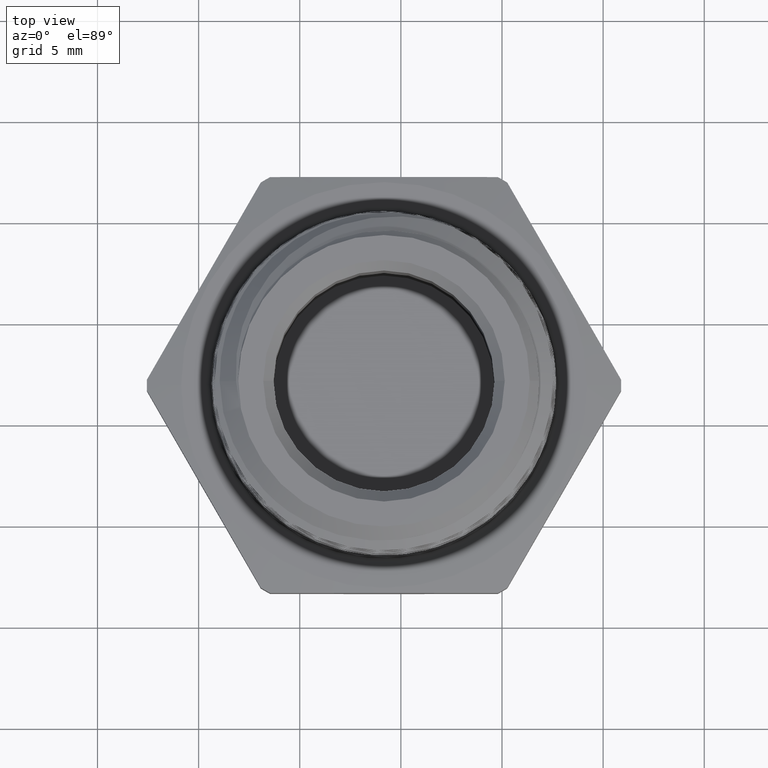
[diagram: clean part render]
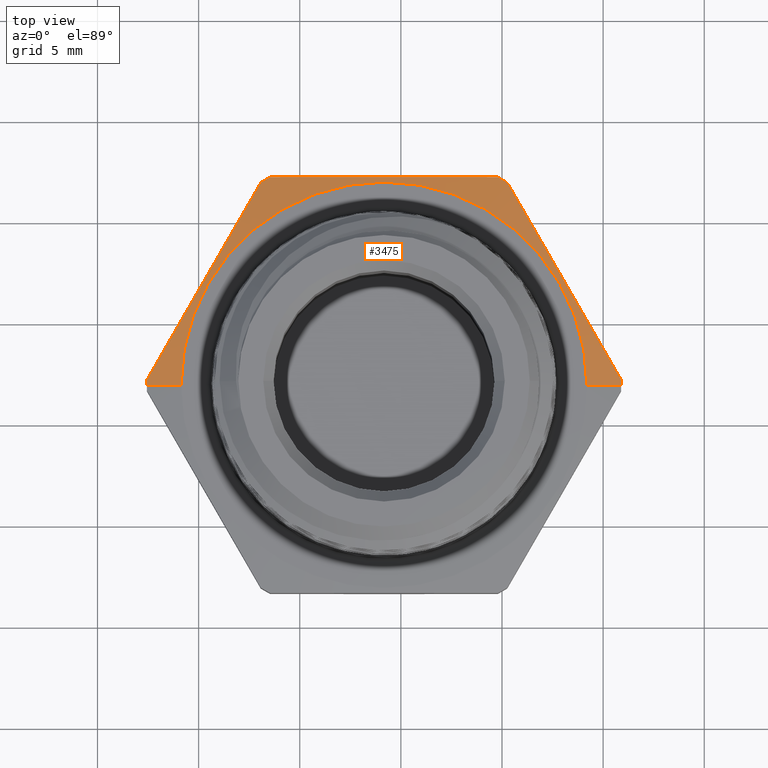
[diagram: same view with one face highlighted and labeled with its STEP entity id]
A machine part, top view. The second image highlights one B-rep face of the part: STEP entity #3475.
In plain terms, the highlighted conical surface has half-angle 78 deg.
Its self-contained STEP definition (entity closure, byte-faithful):
#615 = DIRECTION ( 'NONE',  ( 0.9781476007338069100, 1.197885328332319900E-016, -0.2079116908177526000 ) ) ;
#619 = CARTESIAN_POINT ( 'NONE',  ( 0.3950000000000000200, 4.837354856632045600E-017, 0.1199999999999999000 ) ) ;
#620 = CARTESIAN_POINT ( 'NONE',  ( 1.469576158976820900E-017, 0.0000000000000000000, 0.1199999999999999500 ) ) ;
#621 = DIRECTION ( 'NONE',  ( -1.224646799147351200E-016, -0.0000000000000000000, -1.000000000000000000 ) ) ;
#622 = DIRECTION ( 'NONE',  ( -1.000000000000000000, 0.0000000000000000000, 1.296763288131770500E-016 ) ) ;
#623 = CARTESIAN_POINT ( 'NONE',  ( 0.2768791911317296000, 0.3304311734012696000, 0.1133677952827658300 ) ) ;
#624 = CARTESIAN_POINT ( 'NONE',  ( 0.3507402885326974500, 0.2025000000000002400, 0.1223810734838337300 ) ) ;
#625 = CARTESIAN_POINT ( 'NONE',  ( 1.296072056520598000E-017, 0.0000000000000000000, 0.1058323148701303800 ) ) ;
#626 = DIRECTION ( 'NONE',  ( -1.224646799147351200E-016, -0.0000000000000000000, -1.000000000000000000 ) ) ;
#627 = DIRECTION ( 'NONE',  ( -1.000000000000000000, 0.0000000000000000000, 1.109536171359670700E-016 ) ) ;
#628 = CARTESIAN_POINT ( 'NONE',  ( 0.2399486424312457200, 0.3943967601019042800, 0.1058323148701303400 ) ) ;
#629 = CARTESIAN_POINT ( 'NONE',  ( 0.4246013859336653100, 0.07456882659873079200, 0.1133677952827658700 ) ) ;
#630 = CARTESIAN_POINT ( 'NONE',  ( 0.4615319346341488200, 0.01060323989809597000, 0.1058323148701303300 ) ) ;
#631 = CARTESIAN_POINT ( 'NONE',  ( -0.1476261385661211100, 0.4050000000000000300, 0.1126481207821148400 ) ) ;
#632 = CARTESIAN_POINT ( 'NONE',  ( -0.1846688683639230200, 0.4049999999999999200, 0.1095984099806900600 ) ) ;
#633 = CARTESIAN_POINT ( 'NONE',  ( 1.296072056520598000E-017, 0.0000000000000000000, 0.1058323148701303800 ) ) ;
#634 = DIRECTION ( 'NONE',  ( -1.224646799147351200E-016, -0.0000000000000000000, -1.000000000000000000 ) ) ;
#635 = DIRECTION ( 'NONE',  ( -1.000000000000000000, 0.0000000000000000000, 1.109536171359670700E-016 ) ) ;
#636 = CARTESIAN_POINT ( 'NONE',  ( -0.2215832922029026500, 0.4049999999999998600, 0.1058323148701304100 ) ) ;
#637 = CARTESIAN_POINT ( 'NONE',  ( -0.07366055179631755800, 0.4049999999999999700, 0.1167913988028559300 ) ) ;
#638 = CARTESIAN_POINT ( 'NONE',  ( -0.03669986454074527400, 0.4050000000000000300, 0.1178790002141680800 ) ) ;
#639 = CARTESIAN_POINT ( 'NONE',  ( 0.07410859054405141700, 0.4050000000000000300, 0.1178652587683187600 ) ) ;
#640 = CARTESIAN_POINT ( 'NONE',  ( 0.1478797044767210500, 0.4049999999999999700, 0.1133517257805391600 ) ) ;
#641 = CARTESIAN_POINT ( 'NONE',  ( 0.2215832922029025400, 0.4049999999999999200, 0.1058323148701303400 ) ) ;
#642 = CARTESIAN_POINT ( 'NONE',  ( -0.3507402885326975600, 0.2025000000000000100, 0.1223810734838337700 ) ) ;
#643 = CARTESIAN_POINT ( 'NONE',  ( -0.4246013859336651400, 0.07456882659873072200, 0.1133677952827659000 ) ) ;
#645 = CARTESIAN_POINT ( 'NONE',  ( 1.296072056520598000E-017, 0.0000000000000000000, 0.1058323148701303800 ) ) ;
#646 = DIRECTION ( 'NONE',  ( -1.224646799147351200E-016, -0.0000000000000000000, -1.000000000000000000 ) ) ;
#647 = DIRECTION ( 'NONE',  ( -1.000000000000000000, 0.0000000000000000000, 1.109536171359670700E-016 ) ) ;
#648 = CARTESIAN_POINT ( 'NONE',  ( -0.4615319346341488200, 0.01060323989809593500, 0.1058323148701304400 ) ) ;
#649 = CARTESIAN_POINT ( 'NONE',  ( -0.2768791911317301500, 0.3304311734012695400, 0.1133677952827659200 ) ) ;
#650 = CARTESIAN_POINT ( 'NONE',  ( -0.2399486424312462500, 0.3943967601019039400, 0.1058323148701304100 ) ) ;
#1320 = CARTESIAN_POINT ( 'NONE',  ( -0.3950000000000000200, 0.0000000000000000000, 0.1200000000000000000 ) ) ;
#1321 = CARTESIAN_POINT ( 'NONE',  ( 1.296072056520598000E-017, 0.0000000000000000000, 0.1058323148701303800 ) ) ;
#1322 = DIRECTION ( 'NONE',  ( -1.224646799147351200E-016, -0.0000000000000000000, -1.000000000000000000 ) ) ;
#1323 = DIRECTION ( 'NONE',  ( -1.000000000000000000, 0.0000000000000000000, 1.109536171359670700E-016 ) ) ;
#1325 = DIRECTION ( 'NONE',  ( -0.9781476007338071300, 0.0000000000000000000, -0.2079116908177524000 ) ) ;
#2846 = CARTESIAN_POINT ( 'NONE',  ( 0.4615319346341488200, 0.01060323989809597000, 0.1058323148701303300 ) ) ;
#2887 = CARTESIAN_POINT ( 'NONE',  ( 0.4616537180435968400, 5.653627481165655800E-017, 0.1058323148701303300 ) ) ;
#2888 = CARTESIAN_POINT ( 'NONE',  ( -0.2215832922029026500, 0.4049999999999998600, 0.1058323148701304100 ) ) ;
#2891 = CARTESIAN_POINT ( 'NONE',  ( 0.2399486424312457200, 0.3943967601019042800, 0.1058323148701303400 ) ) ;
#2892 = CARTESIAN_POINT ( 'NONE',  ( 0.2215832922029025400, 0.4049999999999999200, 0.1058323148701303400 ) ) ;
#2920 = CARTESIAN_POINT ( 'NONE',  ( -0.4616537180435968400, 0.0000000000000000000, 0.1058323148701304400 ) ) ;
#2922 = CARTESIAN_POINT ( 'NONE',  ( -0.2399486424312462500, 0.3943967601019039400, 0.1058323148701304100 ) ) ;
#2923 = CARTESIAN_POINT ( 'NONE',  ( -0.4615319346341488200, 0.01060323989809593500, 0.1058323148701304400 ) ) ;
#2925 = CARTESIAN_POINT ( 'NONE',  ( 0.3950000000000000200, 4.837354856632045600E-017, 0.1199999999999999000 ) ) ;
#2946 = CARTESIAN_POINT ( 'NONE',  ( -0.3950000000000000200, 0.0000000000000000000, 0.1200000000000000000 ) ) ;
#3475 = ADVANCED_FACE ( 'NONE', ( #4493 ), #4502, .T. ) ;
#3532 = AXIS2_PLACEMENT_3D ( 'NONE', #620, #621, #622 ) ;
#3533 = AXIS2_PLACEMENT_3D ( 'NONE', #625, #626, #627 ) ;
#3534 = AXIS2_PLACEMENT_3D ( 'NONE', #633, #634, #635 ) ;
#3535 = AXIS2_PLACEMENT_3D ( 'NONE', #645, #646, #647 ) ;
#3536 = AXIS2_PLACEMENT_3D ( 'NONE', #1321, #1322, #1323 ) ;
#3957 = EDGE_CURVE ( 'NONE', #4456, #4435, #4568, .T. ) ;
#3958 = EDGE_CURVE ( 'NONE', #4435, #4394, #4567, .T. ) ;
#3959 = EDGE_CURVE ( 'NONE', #4361, #4394, #4572, .T. ) ;
#3960 = EDGE_CURVE ( 'NONE', #4399, #4361, #5283, .T. ) ;
#3961 = EDGE_CURVE ( 'NONE', #4400, #4399, #4571, .T. ) ;
#3962 = EDGE_CURVE ( 'NONE', #4396, #4400, #5282, .T. ) ;
#3963 = EDGE_CURVE ( 'NONE', #4432, #4396, #4576, .T. ) ;
#3964 = EDGE_CURVE ( 'NONE', #4433, #4432, #5281, .T. ) ;
#3965 = EDGE_CURVE ( 'NONE', #4430, #4433, #4577, .T. ) ;
#3966 = EDGE_CURVE ( 'NONE', #4456, #4430, #4575, .T. ) ;
#4021 = AXIS2_PLACEMENT_3D ( 'NONE', #4130, #4131, #4129 ) ;
#4129 = DIRECTION ( 'NONE',  ( -1.000000000000000000, 0.0000000000000000000, 1.296763288131770500E-016 ) ) ;
#4130 = CARTESIAN_POINT ( 'NONE',  ( 1.469576158976820900E-017, 0.0000000000000000000, 0.1199999999999999500 ) ) ;
#4131 = DIRECTION ( 'NONE',  ( -1.224646799147351200E-016, -0.0000000000000000000, -1.000000000000000000 ) ) ;
#4361 = VERTEX_POINT ( 'NONE', #2846 ) ;
#4394 = VERTEX_POINT ( 'NONE', #2887 ) ;
#4396 = VERTEX_POINT ( 'NONE', #2888 ) ;
#4399 = VERTEX_POINT ( 'NONE', #2891 ) ;
#4400 = VERTEX_POINT ( 'NONE', #2892 ) ;
#4430 = VERTEX_POINT ( 'NONE', #2920 ) ;
#4432 = VERTEX_POINT ( 'NONE', #2922 ) ;
#4433 = VERTEX_POINT ( 'NONE', #2923 ) ;
#4435 = VERTEX_POINT ( 'NONE', #2925 ) ;
#4456 = VERTEX_POINT ( 'NONE', #2946 ) ;
#4493 = FACE_OUTER_BOUND ( 'NONE', #5217, .T. ) ;
#4502 = CONICAL_SURFACE ( 'NONE', #4021, 0.3950000000000000200, 1.361356816555584000 ) ;
#4567 = LINE ( 'NONE', #619, #4573 ) ;
#4568 = CIRCLE ( 'NONE', #3532, 0.3950000000000000200 ) ;
#4571 = CIRCLE ( 'NONE', #3534, 0.4616537180435968400 ) ;
#4572 = CIRCLE ( 'NONE', #3533, 0.4616537180435968400 ) ;
#4573 = VECTOR ( 'NONE', #615, 39.37007874015748900 ) ;
#4575 = LINE ( 'NONE', #1320, #4579 ) ;
#4576 = CIRCLE ( 'NONE', #3535, 0.4616537180435968400 ) ;
#4577 = CIRCLE ( 'NONE', #3536, 0.4616537180435968400 ) ;
#4579 = VECTOR ( 'NONE', #1325, 39.37007874015748100 ) ;
#5200 = ORIENTED_EDGE ( 'NONE', *, *, #3965, .F. ) ;
#5217 = EDGE_LOOP ( 'NONE', ( #5230, #5231, #5232, #5233, #5234, #5266, #5267, #5264, #5200, #5263 ) ) ;
#5230 = ORIENTED_EDGE ( 'NONE', *, *, #3957, .T. ) ;
#5231 = ORIENTED_EDGE ( 'NONE', *, *, #3958, .T. ) ;
#5232 = ORIENTED_EDGE ( 'NONE', *, *, #3959, .F. ) ;
#5233 = ORIENTED_EDGE ( 'NONE', *, *, #3960, .F. ) ;
#5234 = ORIENTED_EDGE ( 'NONE', *, *, #3961, .F. ) ;
#5263 = ORIENTED_EDGE ( 'NONE', *, *, #3966, .F. ) ;
#5264 = ORIENTED_EDGE ( 'NONE', *, *, #3964, .F. ) ;
#5266 = ORIENTED_EDGE ( 'NONE', *, *, #3962, .F. ) ;
#5267 = ORIENTED_EDGE ( 'NONE', *, *, #3963, .F. ) ;
#5281 = B_SPLINE_CURVE_WITH_KNOTS ( 'NONE', 3,
 ( #648, #643, #642, #649, #650 ),
 .UNSPECIFIED., .F., .F.,
 ( 4, 1, 4 ),
 ( 1.960092707711991300E-006, 0.005630175714661438000, 0.01125839133661516400 ),
 .UNSPECIFIED. ) ;
#5282 = B_SPLINE_CURVE_WITH_KNOTS ( 'NONE', 3,
 ( #636, #632, #631, #637, #638, #639, #640, #641 ),
 .UNSPECIFIED., .F., .F.,
 ( 4, 2, 2, 4 ),
 ( 0.01016691778242289500, 0.01299211520085472000, 0.01581731261928654600, 0.02146770745615019700 ),
 .UNSPECIFIED. ) ;
#5283 = B_SPLINE_CURVE_WITH_KNOTS ( 'NONE', 3,
 ( #628, #623, #624, #629, #630 ),
 .UNSPECIFIED., .F., .F.,
 ( 4, 1, 4 ),
 ( 1.960092708399597900E-006, 0.005630175714662133600, 0.01125839133661586700 ),
 .UNSPECIFIED. ) ;